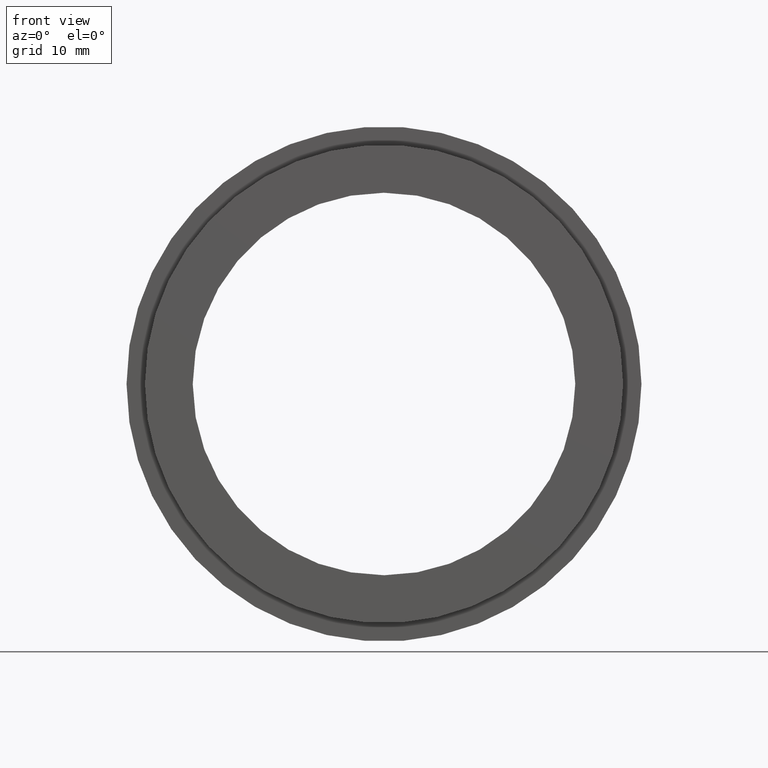
[diagram: clean part render]
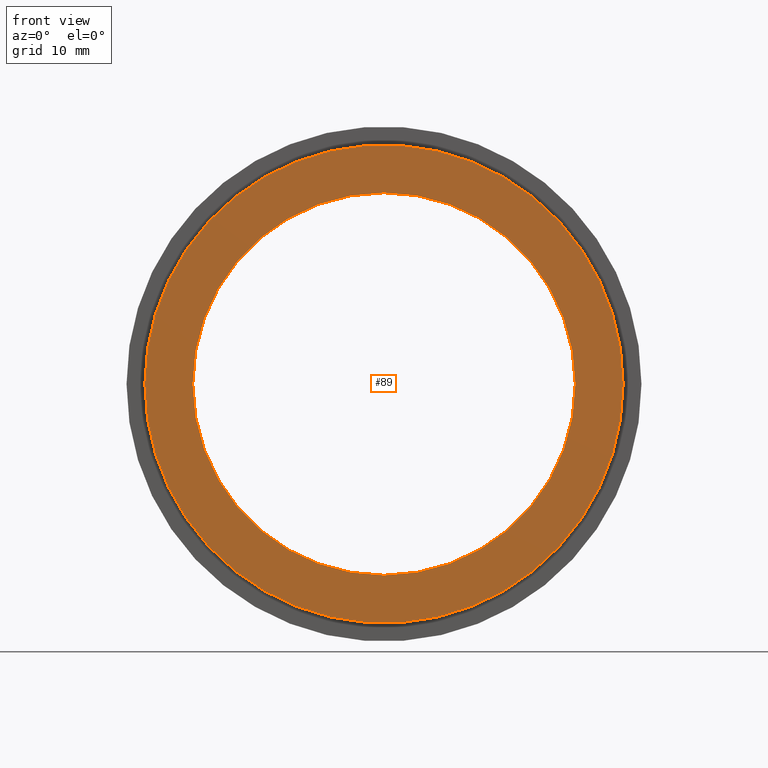
[diagram: same view with one face highlighted and labeled with its STEP entity id]
A machine part, front view. The second image highlights one B-rep face of the part: STEP entity #89.
In plain terms, the highlighted planar face has unit normal (-0, 1, 0).
Its self-contained STEP definition (entity closure, byte-faithful):
#14 = CARTESIAN_POINT ( 'NONE',  ( -20.80000000000000100, -0.5454644111196710300, 0.0000000000000000000 ) ) ;
#26 = AXIS2_PLACEMENT_3D ( 'NONE', #61, #223, #315 ) ;
#34 = DIRECTION ( 'NONE',  ( -1.224646799147351000E-016, 1.000000000000000000, -0.0000000000000000000 ) ) ;
#46 = CARTESIAN_POINT ( 'NONE',  ( -25.99999999999999300, -0.5454644111196717000, 0.0000000000000000000 ) ) ;
#61 = CARTESIAN_POINT ( 'NONE',  ( 20.80000000000000400, -0.5454644111196637100, 0.0000000000000000000 ) ) ;
#86 = AXIS2_PLACEMENT_3D ( 'NONE', #263, #425, #143 ) ;
#89 = ADVANCED_FACE ( 'NONE', ( #388, #373 ), #230, .F. ) ;
#92 = CARTESIAN_POINT ( 'NONE',  ( 2.134740942951285500E-015, -0.5454644111196684800, 0.0000000000000000000 ) ) ;
#107 = CARTESIAN_POINT ( 'NONE',  ( 2.134740942951285500E-015, -0.5454644111196684800, 0.0000000000000000000 ) ) ;
#115 = VERTEX_POINT ( 'NONE', #418 ) ;
#135 = CIRCLE ( 'NONE', #86, 20.80000000000000400 ) ;
#142 = AXIS2_PLACEMENT_3D ( 'NONE', #107, #34, #268 ) ;
#143 = DIRECTION ( 'NONE',  ( -1.000000000000000000, -1.198877402267624800E-016, 0.0000000000000000000 ) ) ;
#144 = CIRCLE ( 'NONE', #349, 25.99999999999999600 ) ;
#150 = ORIENTED_EDGE ( 'NONE', *, *, #153, .F. ) ;
#153 = EDGE_CURVE ( 'NONE', #381, #115, #144, .T. ) ;
#159 = EDGE_CURVE ( 'NONE', #406, #434, #379, .T. ) ;
#179 = EDGE_LOOP ( 'NONE', ( #251, #327 ) ) ;
#204 = DIRECTION ( 'NONE',  ( -1.224646799147351000E-016, 1.000000000000000000, -0.0000000000000000000 ) ) ;
#223 = DIRECTION ( 'NONE',  ( -1.224646799147351000E-016, 1.000000000000000000, 0.0000000000000000000 ) ) ;
#224 = CIRCLE ( 'NONE', #330, 25.99999999999999600 ) ;
#230 = PLANE ( 'NONE',  #26 ) ;
#234 = EDGE_LOOP ( 'NONE', ( #150, #351 ) ) ;
#251 = ORIENTED_EDGE ( 'NONE', *, *, #266, .T. ) ;
#254 = DIRECTION ( 'NONE',  ( -1.000000000000000000, -1.209302423156908900E-016, 0.0000000000000000000 ) ) ;
#263 = CARTESIAN_POINT ( 'NONE',  ( 2.134740942951285500E-015, -0.5454644111196684800, 0.0000000000000000000 ) ) ;
#266 = EDGE_CURVE ( 'NONE', #434, #406, #135, .T. ) ;
#268 = DIRECTION ( 'NONE',  ( -1.000000000000000000, -1.198877402267624800E-016, 0.0000000000000000000 ) ) ;
#292 = DIRECTION ( 'NONE',  ( -1.000000000000000000, -1.209302423156908900E-016, 0.0000000000000000000 ) ) ;
#303 = CARTESIAN_POINT ( 'NONE',  ( 20.80000000000000400, -0.5454644111196660400, 2.547265342226494900E-015 ) ) ;
#315 = DIRECTION ( 'NONE',  ( -1.000000000000000000, -1.224646799147351000E-016, 0.0000000000000000000 ) ) ;
#327 = ORIENTED_EDGE ( 'NONE', *, *, #159, .T. ) ;
#330 = AXIS2_PLACEMENT_3D ( 'NONE', #92, #415, #254 ) ;
#349 = AXIS2_PLACEMENT_3D ( 'NONE', #354, #204, #292 ) ;
#351 = ORIENTED_EDGE ( 'NONE', *, *, #429, .F. ) ;
#354 = CARTESIAN_POINT ( 'NONE',  ( 2.134740942951285500E-015, -0.5454644111196684800, 0.0000000000000000000 ) ) ;
#373 = FACE_BOUND ( 'NONE', #179, .T. ) ;
#379 = CIRCLE ( 'NONE', #142, 20.80000000000000400 ) ;
#381 = VERTEX_POINT ( 'NONE', #46 ) ;
#388 = FACE_OUTER_BOUND ( 'NONE', #234, .T. ) ;
#406 = VERTEX_POINT ( 'NONE', #303 ) ;
#415 = DIRECTION ( 'NONE',  ( -1.224646799147351000E-016, 1.000000000000000000, -0.0000000000000000000 ) ) ;
#418 = CARTESIAN_POINT ( 'NONE',  ( 26.00000000000000000, -0.5454644111196653700, 3.184081677783117800E-015 ) ) ;
#425 = DIRECTION ( 'NONE',  ( -1.224646799147351000E-016, 1.000000000000000000, -0.0000000000000000000 ) ) ;
#429 = EDGE_CURVE ( 'NONE', #115, #381, #224, .T. ) ;
#434 = VERTEX_POINT ( 'NONE', #14 ) ;